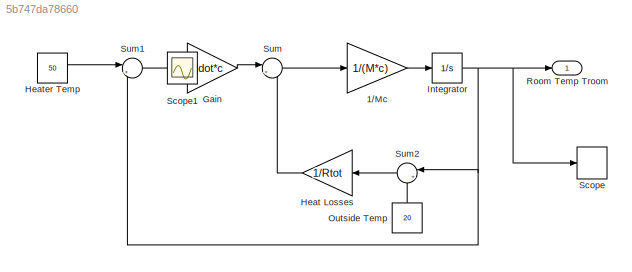
MODEL slx_5b747da78660
KIND model
CONFIG AbsTol = auto
CONFIG FixedStep = auto
CONFIG MaxStep = auto
CONFIG MinStep = auto
CONFIG PreLoadFcn = assignment5
CONFIG RelTol = 1e-3
CONFIG SampleTimeConstraint = Unconstrained
CONFIG Solver = ode45
CONFIG SolverMode = Auto
CONFIG SolverName = ode45
CONFIG StartTime = 0.0
CONFIG StopTime = 3600
BLOCK [Gain] 1//Mc 
  Gain = 1/(M*c)
  OutDataTypeStr = Inherit: Inherit via internal rule
  ParamDataTypeStr = Inherit: Inherit via internal rule
  SaturateOnIntegerOverflow = off
BLOCK [Gain] Gain
  Gain = Mdot*c
  OutDataTypeStr = Inherit: Inherit via internal rule
  ParamDataTypeStr = Inherit: Inherit via internal rule
  SaturateOnIntegerOverflow = off
BLOCK [Gain] Heat Losses
  Gain = 1/Rtot
  OutDataTypeStr = Inherit: Inherit via internal rule
  ParamDataTypeStr = Inherit: Inherit via internal rule
  SaturateOnIntegerOverflow = off
BLOCK [Constant] Heater Temp 
  Value = 50
BLOCK [Integrator] Integrator
  InitialCondition = TinIC
  Ports = [1, 1]
BLOCK [Constant] Outside Temp 
  Value = 20
BLOCK [Outport] Room Temp Troom 
  IconDisplay = Port number
BLOCK [TimeScope] Scope
  NumInputPorts = 1
  Ports = [1]
  ScopeSpecificationString = Simulink.scopes.TimeScopeBlockCfg('CurrentConfiguration', extmgr.ConfigurationSet(extmgr.Configuration('Core','General UI',true),extmgr.Configuration('Core','Source UI',true),extmgr.Configuration('Sources','WiredSimulink',true,'DataLoggingLimitDataPoints',true,'DataLoggingDecimation','1','DataLoggingDecimateData',true,'DataLoggingSaveFormat','Array'),extmgr.Configuration('Visuals','Time Domain',tr...<+1675ch>
BLOCK [Scope] Scope1
  DataFormat = StructureWithTime
  Floating = off
  IOType = viewer
  NumInputPorts = 1
  Ports = []
  SampleTime = 0
  SaveName = ScopeData1
BLOCK [Sum] Sum
  IconShape = round
  InputSameDT = off
  Inputs = |+-
  OutDataTypeStr = Inherit: Inherit via internal rule
  Ports = [2, 1]
  SaturateOnIntegerOverflow = off
BLOCK [Sum] Sum1
  IconShape = round
  InputSameDT = off
  Inputs = |+-
  OutDataTypeStr = Inherit: Inherit via internal rule
  Ports = [2, 1]
  SaturateOnIntegerOverflow = off
BLOCK [Sum] Sum2
  IconShape = round
  InputSameDT = off
  Inputs = |+-
  OutDataTypeStr = Inherit: Inherit via internal rule
  Ports = [2, 1]
  SaturateOnIntegerOverflow = off
LINE 1//Mc :1 -> Integrator:1
LINE Gain:1 -> Sum:1
LINE Heat Losses:1 -> Sum:2
LINE Heater Temp :1 -> Sum1:1
NET Integrator:1 -> Room Temp Troom :1, Scope:1, Sum1:2, Sum2:1
LINE Outside Temp :1 -> Sum2:2
LINE Sum1:1 -> Gain:1
LINE Sum2:1 -> Heat Losses:1
LINE Sum:1 -> 1//Mc :1
note: NET lines group one-source signal fan-out (src -> all destinations, sorted); 1:1 wires keep LINE
